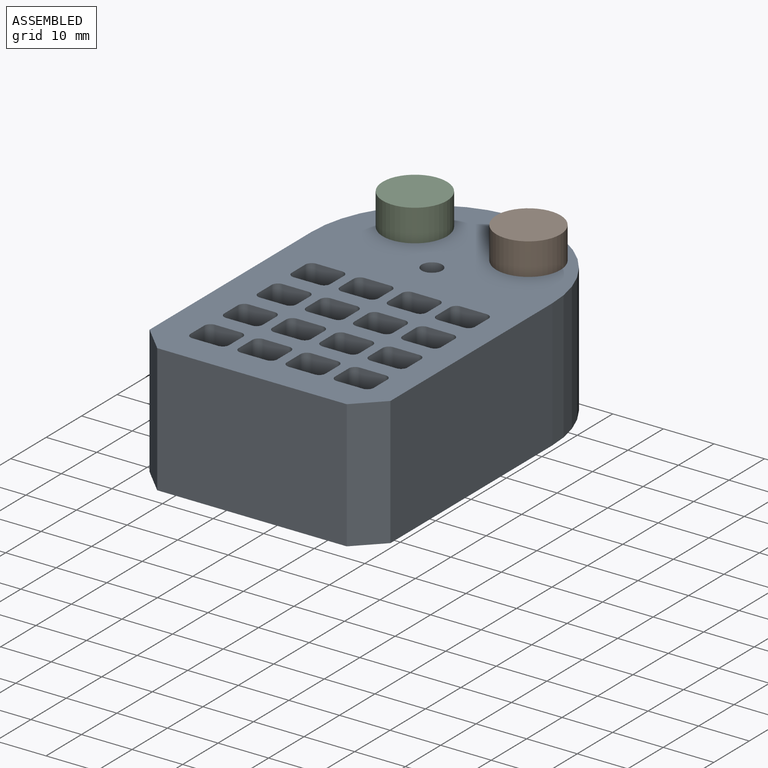
[diagram: assembled view]
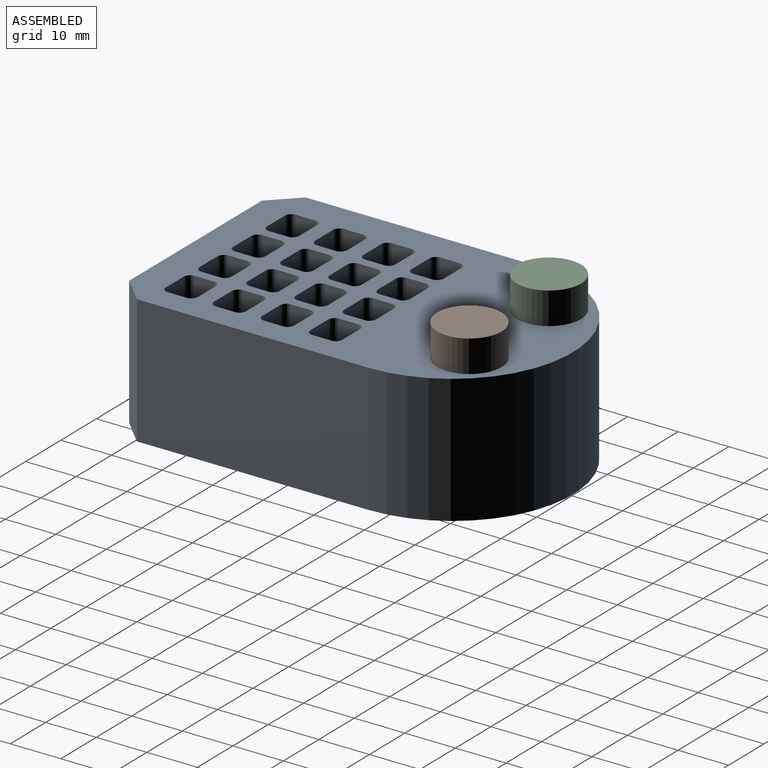
[diagram: assembled view, second angle]
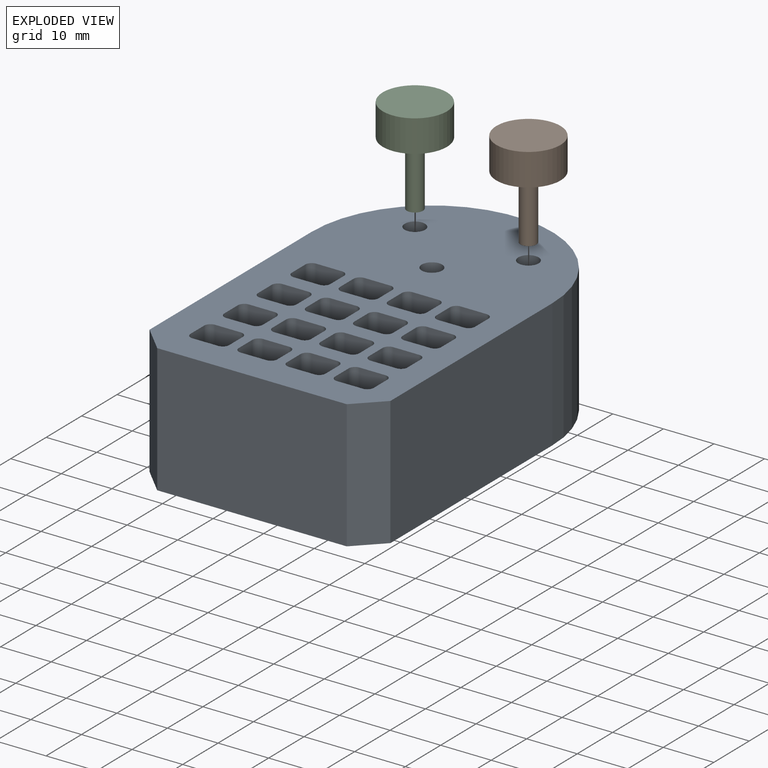
[diagram: exploded view]
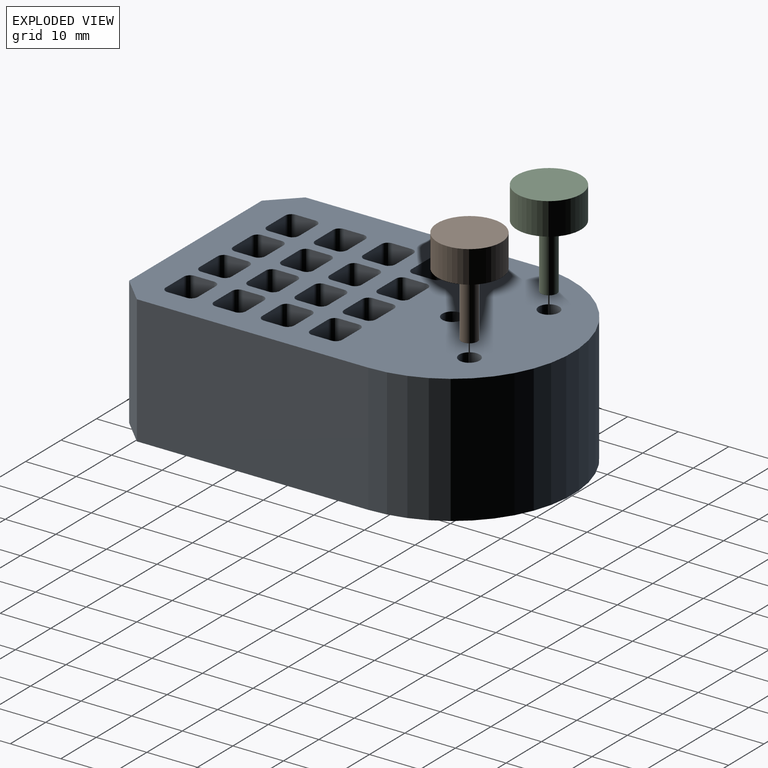
[diagram: exploded view, second angle]
ASSEMBLY  parts=3 mates=3
PART A: 139 faces, bbox 47.6x74.6x25.4 mm
  f0: cylinder r=1.27mm len=25.4mm, axis (0,0,-1), area 50.7mm2, adj f4,f7,f120,f121
  f1: cylinder r=1.27mm len=25.4mm, axis (0,0,1), area 50.7mm2, adj f6,f7,f120,f121
  f2: cylinder r=1.27mm len=25.4mm, axis (0,0,-1), area 50.7mm2, adj f5,f6,f120,f121
  f3: cylinder r=1.27mm len=25.4mm, axis (0,0,1), area 50.7mm2, adj f4,f5,f120,f121
  f4: plane 25.4x3.81mm, normal (1,0,0), area 96.8mm2, adj f0,f3,f120,f121
  f5: plane 25.4x5.08mm, normal (0,1,0), area 129mm2, adj f2,f3,f120,f121
  f6: plane 25.4x3.81mm, normal (-1,0,0), area 96.8mm2, adj f1,f2,f120,f121
  f7: plane 25.4x5.08mm, normal (0,-1,0), area 129mm2, adj f0,f1,f120,f121
  f8: cylinder r=1.27mm len=25.4mm, axis (0,0,-1), area 50.7mm2, adj f12,f15,f120,f121
  f9: cylinder r=1.27mm len=25.4mm, axis (0,0,1), area 50.7mm2, adj f14,f15,f120,f121
  f10: cylinder r=1.27mm len=25.4mm, axis (0,0,-1), area 50.7mm2, adj f13,f14,f120,f121
  f11: cylinder r=1.27mm len=25.4mm, axis (0,0,1), area 50.7mm2, adj f12,f13,f120,f121
  f12: plane 25.4x3.81mm, normal (1,0,0), area 96.8mm2, adj f8,f11,f120,f121
  f13: plane 25.4x5.08mm, normal (0,1,0), area 129mm2, adj f10,f11,f120,f121
  f14: plane 25.4x3.81mm, normal (-1,0,0), area 96.8mm2, adj f9,f10,f120,f121
  f15: plane 25.4x5.08mm, normal (0,-1,0), area 129mm2, adj f8,f9,f120,f121
  f16: cylinder r=1.27mm len=25.4mm, axis (0,0,-1), area 50.7mm2, adj f20,f23,f120,f121
  f17: cylinder r=1.27mm len=25.4mm, axis (0,0,1), area 50.7mm2, adj f22,f23,f120,f121
  f18: cylinder r=1.27mm len=25.4mm, axis (0,0,-1), area 50.7mm2, adj f21,f22,f120,f121
  f19: cylinder r=1.27mm len=25.4mm, axis (0,0,1), area 50.7mm2, adj f20,f21,f120,f121
  f20: plane 25.4x3.81mm, normal (1,0,0), area 96.8mm2, adj f16,f19,f120,f121
  f21: plane 25.4x5.08mm, normal (0,1,0), area 129mm2, adj f18,f19,f120,f121
  f22: plane 25.4x3.81mm, normal (-1,0,0), area 96.8mm2, adj f17,f18,f120,f121
  f23: plane 25.4x5.08mm, normal (0,-1,0), area 129mm2, adj f16,f17,f120,f121
  f24: cylinder r=1.27mm len=25.4mm, axis (0,0,-1), area 50.7mm2, adj f28,f31,f120,f121
  f25: cylinder r=1.27mm len=25.4mm, axis (0,0,1), area 50.7mm2, adj f30,f31,f120,f121
  f26: cylinder r=1.27mm len=25.4mm, axis (0,0,-1), area 50.7mm2, adj f29,f30,f120,f121
  f27: cylinder r=1.27mm len=25.4mm, axis (0,0,1), area 50.7mm2, adj f28,f29,f120,f121
  f28: plane 25.4x3.81mm, normal (1,0,0), area 96.8mm2, adj f24,f27,f120,f121
  f29: plane 25.4x5.08mm, normal (0,1,0), area 129mm2, adj f26,f27,f120,f121
  f30: plane 25.4x3.81mm, normal (-1,0,0), area 96.8mm2, adj f25,f26,f120,f121
  f31: plane 25.4x5.08mm, normal (0,-1,0), area 129mm2, adj f24,f25,f120,f121
  f32: cylinder r=1.27mm len=25.4mm, axis (0,0,-1), area 50.7mm2, adj f36,f39,f120,f121
  f33: cylinder r=1.27mm len=25.4mm, axis (0,0,1), area 50.7mm2, adj f38,f39,f120,f121
  f34: cylinder r=1.27mm len=25.4mm, axis (0,0,-1), area 50.7mm2, adj f37,f38,f120,f121
  f35: cylinder r=1.27mm len=25.4mm, axis (0,0,1), area 50.7mm2, adj f36,f37,f120,f121
  f36: plane 25.4x3.81mm, normal (1,0,0), area 96.8mm2, adj f32,f35,f120,f121
  f37: plane 25.4x5.08mm, normal (0,1,0), area 129mm2, adj f34,f35,f120,f121
  f38: plane 25.4x3.81mm, normal (-1,0,0), area 96.8mm2, adj f33,f34,f120,f121
  f39: plane 25.4x5.08mm, normal (0,-1,0), area 129mm2, adj f32,f33,f120,f121
  f40: cylinder r=1.27mm len=25.4mm, axis (0,0,-1), area 50.7mm2, adj f44,f47,f120,f121
  f41: cylinder r=1.27mm len=25.4mm, axis (0,0,1), area 50.7mm2, adj f46,f47,f120,f121
  f42: cylinder r=1.27mm len=25.4mm, axis (0,0,-1), area 50.7mm2, adj f45,f46,f120,f121
  f43: cylinder r=1.27mm len=25.4mm, axis (0,0,1), area 50.7mm2, adj f44,f45,f120,f121
  f44: plane 25.4x3.81mm, normal (1,0,0), area 96.8mm2, adj f40,f43,f120,f121
  f45: plane 25.4x5.08mm, normal (0,1,0), area 129mm2, adj f42,f43,f120,f121
  f46: plane 25.4x3.81mm, normal (-1,0,0), area 96.8mm2, adj f41,f42,f120,f121
  f47: plane 25.4x5.08mm, normal (0,-1,0), area 129mm2, adj f40,f41,f120,f121
  f48: cylinder r=1.27mm len=25.4mm, axis (0,0,-1), area 50.7mm2, adj f52,f55,f120,f121
  f49: cylinder r=1.27mm len=25.4mm, axis (0,0,1), area 50.7mm2, adj f54,f55,f120,f121
  f50: cylinder r=1.27mm len=25.4mm, axis (0,0,-1), area 50.7mm2, adj f53,f54,f120,f121
  f51: cylinder r=1.27mm len=25.4mm, axis (0,0,1), area 50.7mm2, adj f52,f53,f120,f121
  f52: plane 25.4x3.81mm, normal (1,0,0), area 96.8mm2, adj f48,f51,f120,f121
  f53: plane 25.4x5.08mm, normal (0,1,0), area 129mm2, adj f50,f51,f120,f121
  f54: plane 25.4x3.81mm, normal (-1,0,0), area 96.8mm2, adj f49,f50,f120,f121
  f55: plane 25.4x5.08mm, normal (0,-1,0), area 129mm2, adj f48,f49,f120,f121
  f56: cylinder r=1.27mm len=25.4mm, axis (0,0,-1), area 50.7mm2, adj f60,f63,f120,f121
  f57: cylinder r=1.27mm len=25.4mm, axis (0,0,1), area 50.7mm2, adj f62,f63,f120,f121
  f58: cylinder r=1.27mm len=25.4mm, axis (0,0,-1), area 50.7mm2, adj f61,f62,f120,f121
  f59: cylinder r=1.27mm len=25.4mm, axis (0,0,1), area 50.7mm2, adj f60,f61,f120,f121
  f60: plane 25.4x3.81mm, normal (1,0,0), area 96.8mm2, adj f56,f59,f120,f121
  f61: plane 25.4x5.08mm, normal (0,1,0), area 129mm2, adj f58,f59,f120,f121
  f62: plane 25.4x3.81mm, normal (-1,0,0), area 96.8mm2, adj f57,f58,f120,f121
  f63: plane 25.4x5.08mm, normal (0,-1,0), area 129mm2, adj f56,f57,f120,f121
  f64: cylinder r=1.27mm len=25.4mm, axis (0,0,-1), area 50.7mm2, adj f68,f71,f120,f121
  f65: cylinder r=1.27mm len=25.4mm, axis (0,0,1), area 50.7mm2, adj f70,f71,f120,f121
  f66: cylinder r=1.27mm len=25.4mm, axis (0,0,-1), area 50.7mm2, adj f69,f70,f120,f121
  f67: cylinder r=1.27mm len=25.4mm, axis (0,0,1), area 50.7mm2, adj f68,f69,f120,f121
  f68: plane 25.4x3.81mm, normal (1,0,0), area 96.8mm2, adj f64,f67,f120,f121
  f69: plane 25.4x5.08mm, normal (0,1,0), area 129mm2, adj f66,f67,f120,f121
  f70: plane 25.4x3.81mm, normal (-1,0,0), area 96.8mm2, adj f65,f66,f120,f121
  f71: plane 25.4x5.08mm, normal (0,-1,0), area 129mm2, adj f64,f65,f120,f121
  f72: cylinder r=1.27mm len=25.4mm, axis (0,0,-1), area 50.7mm2, adj f76,f79,f120,f121
  f73: cylinder r=1.27mm len=25.4mm, axis (0,0,1), area 50.7mm2, adj f78,f79,f120,f121
  f74: cylinder r=1.27mm len=25.4mm, axis (0,0,-1), area 50.7mm2, adj f77,f78,f120,f121
  f75: cylinder r=1.27mm len=25.4mm, axis (0,0,1), area 50.7mm2, adj f76,f77,f120,f121
  f76: plane 25.4x3.81mm, normal (1,0,0), area 96.8mm2, adj f72,f75,f120,f121
  f77: plane 25.4x5.08mm, normal (0,1,0), area 129mm2, adj f74,f75,f120,f121
  f78: plane 25.4x3.81mm, normal (-1,0,0), area 96.8mm2, adj f73,f74,f120,f121
  f79: plane 25.4x5.08mm, normal (0,-1,0), area 129mm2, adj f72,f73,f120,f121
  f80: cylinder r=1.27mm len=25.4mm, axis (0,0,-1), area 50.7mm2, adj f84,f87,f120,f121
  f81: cylinder r=1.27mm len=25.4mm, axis (0,0,1), area 50.7mm2, adj f86,f87,f120,f121
  f82: cylinder r=1.27mm len=25.4mm, axis (0,0,-1), area 50.7mm2, adj f85,f86,f120,f121
  f83: cylinder r=1.27mm len=25.4mm, axis (0,0,1), area 50.7mm2, adj f84,f85,f120,f121
  f84: plane 25.4x3.81mm, normal (1,0,0), area 96.8mm2, adj f80,f83,f120,f121
  f85: plane 25.4x5.08mm, normal (0,1,0), area 129mm2, adj f82,f83,f120,f121
  f86: plane 25.4x3.81mm, normal (-1,0,0), area 96.8mm2, adj f81,f82,f120,f121
  f87: plane 25.4x5.08mm, normal (0,-1,0), area 129mm2, adj f80,f81,f120,f121
  f88: cylinder r=1.27mm len=25.4mm, axis (0,0,-1), area 50.7mm2, adj f92,f95,f120,f121
  f89: cylinder r=1.27mm len=25.4mm, axis (0,0,1), area 50.7mm2, adj f94,f95,f120,f121
  f90: cylinder r=1.27mm len=25.4mm, axis (0,0,-1), area 50.7mm2, adj f93,f94,f120,f121
  f91: cylinder r=1.27mm len=25.4mm, axis (0,0,1), area 50.7mm2, adj f92,f93,f120,f121
  f92: plane 25.4x3.81mm, normal (1,0,0), area 96.8mm2, adj f88,f91,f120,f121
  f93: plane 25.4x5.08mm, normal (0,1,0), area 129mm2, adj f90,f91,f120,f121
  f94: plane 25.4x3.81mm, normal (-1,0,0), area 96.8mm2, adj f89,f90,f120,f121
  f95: plane 25.4x5.08mm, normal (0,-1,0), area 129mm2, adj f88,f89,f120,f121
  f96: cylinder r=1.27mm len=25.4mm, axis (0,0,-1), area 50.7mm2, adj f100,f103,f120,f121
  f97: cylinder r=1.27mm len=25.4mm, axis (0,0,1), area 50.7mm2, adj f102,f103,f120,f121
  f98: cylinder r=1.27mm len=25.4mm, axis (0,0,-1), area 50.7mm2, adj f101,f102,f120,f121
  f99: cylinder r=1.27mm len=25.4mm, axis (0,0,1), area 50.7mm2, adj f100,f101,f120,f121
  f100: plane 25.4x3.81mm, normal (1,0,0), area 96.8mm2, adj f96,f99,f120,f121
  f101: plane 25.4x5.08mm, normal (0,1,0), area 129mm2, adj f98,f99,f120,f121
  f102: plane 25.4x3.81mm, normal (-1,0,0), area 96.8mm2, adj f97,f98,f120,f121
  f103: plane 25.4x5.08mm, normal (0,-1,0), area 129mm2, adj f96,f97,f120,f121
  f104: cylinder r=1.27mm len=25.4mm, axis (0,0,-1), area 50.7mm2, adj f108,f111,f120,f121
  f105: cylinder r=1.27mm len=25.4mm, axis (0,0,1), area 50.7mm2, adj f110,f111,f120,f121
  f106: cylinder r=1.27mm len=25.4mm, axis (0,0,-1), area 50.7mm2, adj f109,f110,f120,f121
  f107: cylinder r=1.27mm len=25.4mm, axis (0,0,1), area 50.7mm2, adj f108,f109,f120,f121
  f108: plane 25.4x3.81mm, normal (1,0,0), area 96.8mm2, adj f104,f107,f120,f121
  f109: plane 25.4x5.08mm, normal (0,1,0), area 129mm2, adj f106,f107,f120,f121
  f110: plane 25.4x3.81mm, normal (-1,0,0), area 96.8mm2, adj f105,f106,f120,f121
  f111: plane 25.4x5.08mm, normal (0,-1,0), area 129mm2, adj f104,f105,f120,f121
  f112: cylinder r=1.27mm len=25.4mm, axis (0,0,-1), area 50.7mm2, adj f116,f119,f120,f121
  f113: cylinder r=1.27mm len=25.4mm, axis (0,0,1), area 50.7mm2, adj f118,f119,f120,f121
  f114: cylinder r=1.27mm len=25.4mm, axis (0,0,-1), area 50.7mm2, adj f117,f118,f120,f121
  f115: cylinder r=1.27mm len=25.4mm, axis (0,0,1), area 50.7mm2, adj f116,f117,f120,f121
  f116: plane 25.4x3.81mm, normal (1,0,0), area 96.8mm2, adj f112,f115,f120,f121
  f117: plane 25.4x5.08mm, normal (0,1,0), area 129mm2, adj f114,f115,f120,f121
  f118: plane 25.4x3.81mm, normal (-1,0,0), area 96.8mm2, adj f113,f114,f120,f121
  f119: plane 25.4x5.08mm, normal (0,-1,0), area 129mm2, adj f112,f113,f120,f121
  f120: plane 74.61x47.63mm, normal (0,0,1), area 2493.8mm2, adj f0,f1,f2,f3,f4,f5,f6,f7
  f121: plane 74.61x47.63mm, normal (0,0,-1), area 2493.8mm2, adj f0,f1,f2,f3,f4,f5,f6,f7
  f122: plane 37.47x25.4mm, normal (0,-1,0), area 951.6mm2, adj f120,f121,f137,f138
  f123: plane 45.72x25.4mm, normal (1,0,0), area 1161.3mm2, adj f120,f121,f124,f137
  f124: cylinder r=23.81mm len=47.63mm, axis (0,0,-1), area 1900.2mm2, adj f120,f121,f123,f125
  f125: plane 45.72x25.4mm, normal (-1,0,0), area 1161.3mm2, adj f120,f121,f124,f138
  f126: plane 25.4x3.81mm, normal (1,0,0), area 96.8mm2, adj f120,f121,f133,f136
  f127: plane 25.4x5.08mm, normal (0,1,0), area 129mm2, adj f120,f121,f133,f134
  f128: plane 25.4x3.81mm, normal (-1,0,0), area 96.8mm2, adj f120,f121,f134,f135
  f129: plane 25.4x5.08mm, normal (0,-1,0), area 129mm2, adj f120,f121,f135,f136
  f130: cylinder r=2.02mm len=25.4mm, axis (0,0,1), area 322.3mm2, adj f120,f121
  f131: cylinder r=2.02mm len=25.4mm, axis (0,0,1), area 322.3mm2, adj f120,f121
  f132: cylinder r=2.02mm len=25.4mm, axis (0,0,1), area 322.3mm2, adj f120,f121
  f133: cylinder r=1.27mm len=25.4mm, axis (0,0,1), area 50.7mm2, adj f120,f121,f126,f127
  f134: cylinder r=1.27mm len=25.4mm, axis (0,0,-1), area 50.7mm2, adj f120,f121,f127,f128
  f135: cylinder r=1.27mm len=25.4mm, axis (0,0,1), area 50.7mm2, adj f120,f121,f128,f129
  f136: cylinder r=1.27mm len=25.4mm, axis (0,0,-1), area 50.7mm2, adj f120,f121,f126,f129
  f137: plane 25.4x5.08mm, normal (0.71,-0.71,0), area 182.5mm2, adj f120,f121,f122,f123
  f138: plane 25.4x5.08mm, normal (-0.71,-0.71,0), area 182.5mm2, adj f120,f121,f122,f125
PART B: 5 faces, bbox 12.7x12.7x19.1 mm
  f0: plane 12.7x12.7mm, normal (0,0,-1), area 126.7mm2, adj f1
  f1: cylinder r=6.35mm len=12.7mm, axis (0,0,1), area 253.4mm2, adj f0,f2
  f2: plane 12.7x12.7mm, normal (0,0,1), area 118.8mm2, adj f1,f3
  f3: cylinder r=1.59mm len=12.7mm, axis (0,0,1), area 126.7mm2, adj f2,f4
  f4: plane 3.18x3.18mm, normal (0,0,1), area 7.9mm2, adj f3
PART C: same geometry as B
PLACE A t=(-12.28,-18.32,-6.35)mm fixed
PLACE B rot(axis=(1,0,0),180deg) t=(22.76,43.7,25.4)mm
PLACE C rot(axis=(1,0,0),180deg) t=(0.31,43.7,25.4)mm
MATE planar A.f130 <-> C.f1  axis (0,0,1) through (22.76,43.7,19.05)mm
MATE cylindrical C.f1 <-> A.f131  axis (0,0,-1) through (0.31,43.7,12.7)mm
MATE cylindrical B.f1 <-> A.f130  axis (0,0,-1) through (22.76,43.7,19.05)mm
